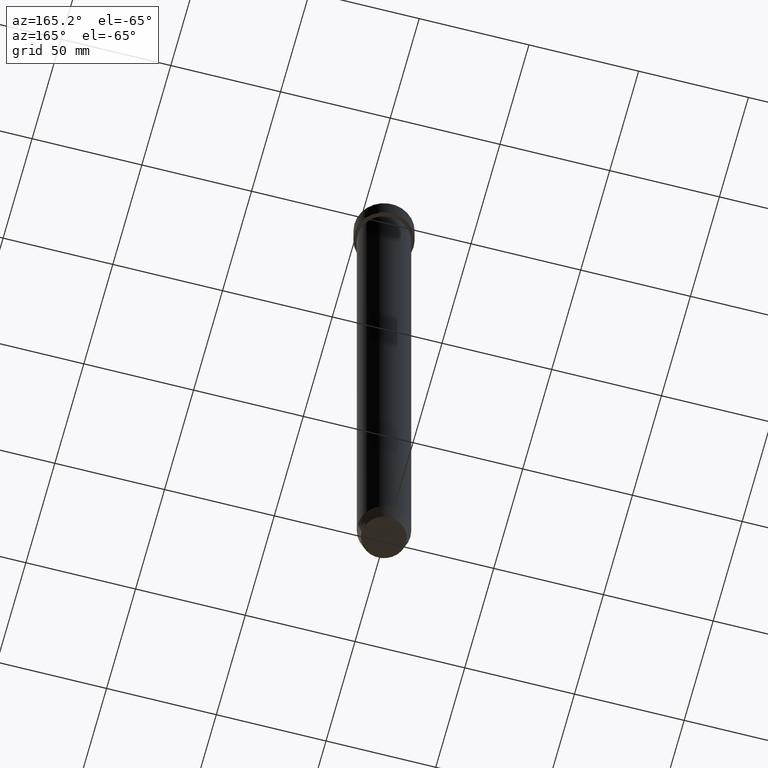
[diagram: clean part render]
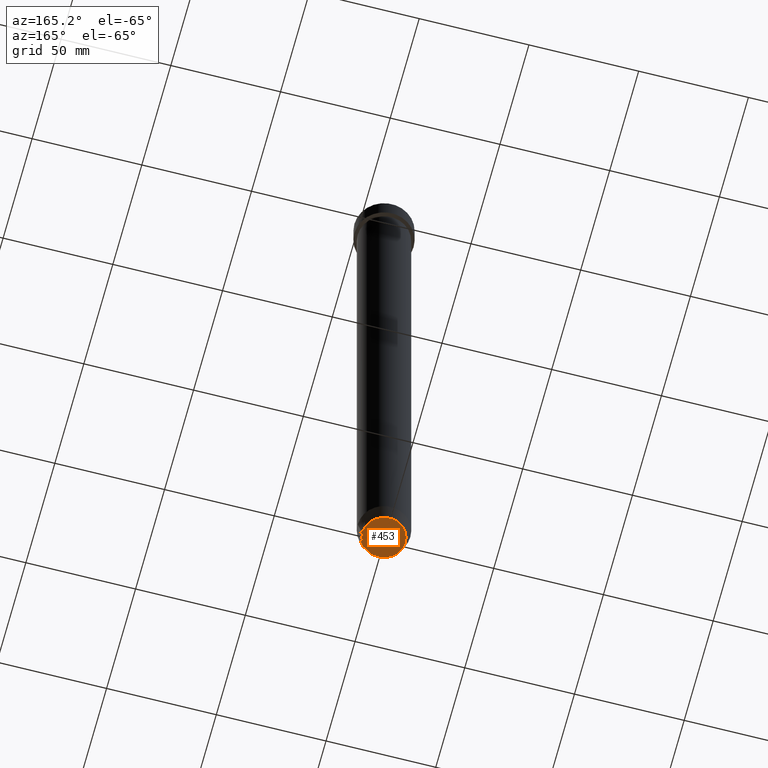
[diagram: same view with one face highlighted and labeled with its STEP entity id]
A machine part, auxiliary view. The second image highlights one B-rep face of the part: STEP entity #453.
In plain terms, the highlighted planar face has unit normal (0, -0, 1).
Its self-contained STEP definition (entity closure, byte-faithful):
#19 = AXIS2_PLACEMENT_3D ( 'NONE', #565, #322, #523 ) ;
#34 = DIRECTION ( 'NONE',  ( 0.000000000000000000, -0.000000000000000000, 1.000000000000000000 ) ) ;
#50 = CARTESIAN_POINT ( 'NONE',  ( 0.000000000000000000, 0.000000000000000000, -320.0000000000000000 ) ) ;
#69 = EDGE_CURVE ( 'NONE', #307, #596, #232, .T. ) ;
#79 = ORIENTED_EDGE ( 'NONE', *, *, #69, .T. ) ;
#100 = CIRCLE ( 'NONE', #19, 9.740692158992656502 ) ;
#131 = PLANE ( 'NONE',  #330 ) ;
#227 = CARTESIAN_POINT ( 'NONE',  ( 0.000000000000000000, 3.306546357697854049E-14, -320.0000000000000000 ) ) ;
#232 = CIRCLE ( 'NONE', #561, 9.740692158992656502 ) ;
#247 = CARTESIAN_POINT ( 'NONE',  ( 9.740692158992656502, 0.000000000000000000, -320.0000000000000000 ) ) ;
#261 = ORIENTED_EDGE ( 'NONE', *, *, #518, .T. ) ;
#307 = VERTEX_POINT ( 'NONE', #247 ) ;
#319 = DIRECTION ( 'NONE',  ( 1.000000000000000000, 0.000000000000000000, 0.000000000000000000 ) ) ;
#322 = DIRECTION ( 'NONE',  ( 0.000000000000000000, 0.000000000000000000, -1.000000000000000000 ) ) ;
#330 = AXIS2_PLACEMENT_3D ( 'NONE', #227, #34, #319 ) ;
#344 = DIRECTION ( 'NONE',  ( 0.000000000000000000, 0.000000000000000000, -1.000000000000000000 ) ) ;
#376 = CARTESIAN_POINT ( 'NONE',  ( -9.740692158992656502, 1.222463696683474604E-15, -320.0000000000000000 ) ) ;
#447 = EDGE_LOOP ( 'NONE', ( #79, #261 ) ) ;
#453 = ADVANCED_FACE ( 'NONE', ( #536 ), #131, .F. ) ;
#475 = DIRECTION ( 'NONE',  ( 1.000000000000000000, 0.000000000000000000, 0.000000000000000000 ) ) ;
#518 = EDGE_CURVE ( 'NONE', #596, #307, #100, .T. ) ;
#523 = DIRECTION ( 'NONE',  ( 1.000000000000000000, 0.000000000000000000, 0.000000000000000000 ) ) ;
#536 = FACE_OUTER_BOUND ( 'NONE', #447, .T. ) ;
#561 = AXIS2_PLACEMENT_3D ( 'NONE', #50, #344, #475 ) ;
#565 = CARTESIAN_POINT ( 'NONE',  ( 0.000000000000000000, 0.000000000000000000, -320.0000000000000000 ) ) ;
#596 = VERTEX_POINT ( 'NONE', #376 ) ;